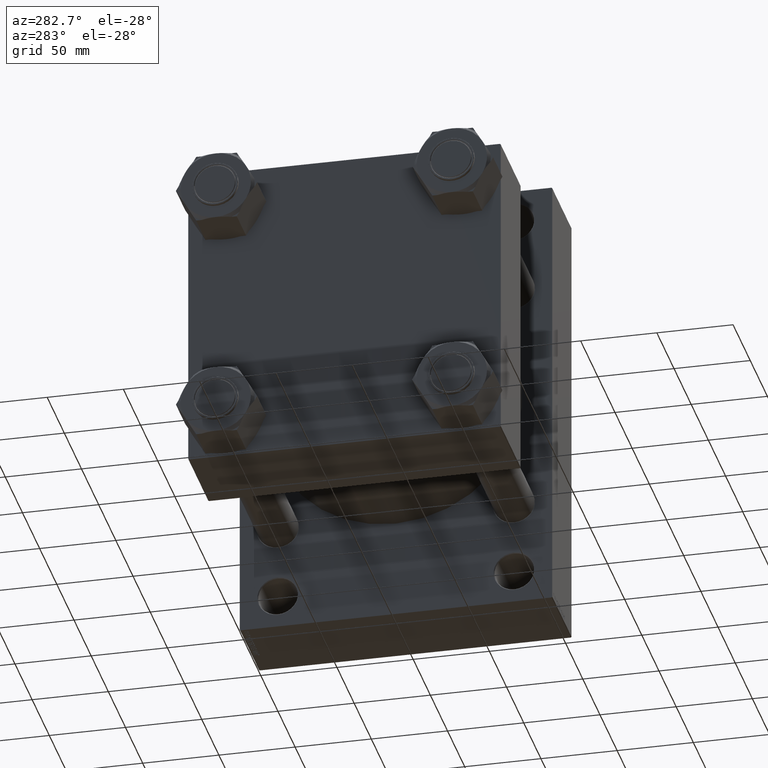
[diagram: clean part render]
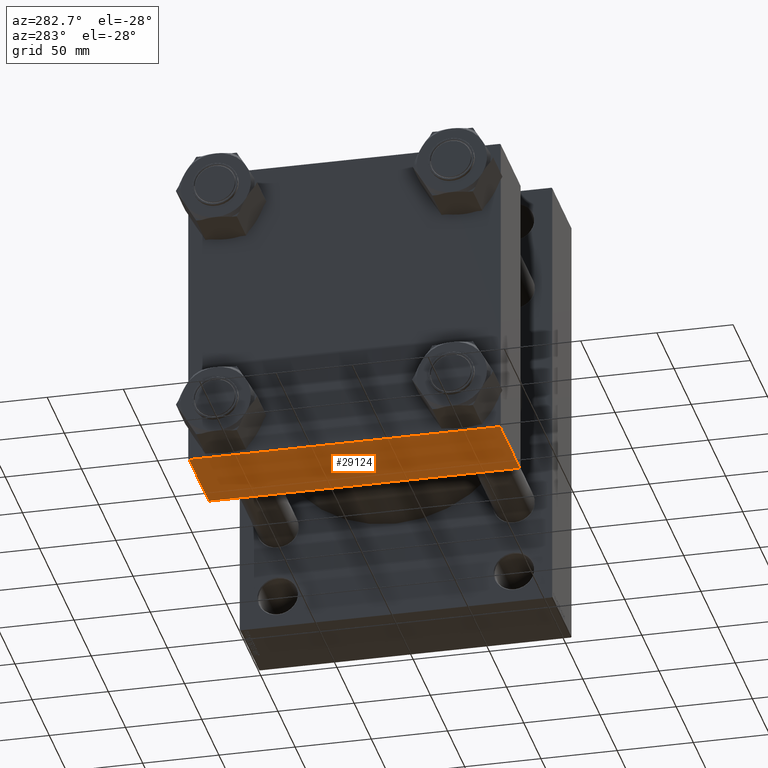
[diagram: same view with one face highlighted and labeled with its STEP entity id]
A machine part, auxiliary view. The second image highlights one B-rep face of the part: STEP entity #29124.
In plain terms, the highlighted planar face has unit normal (0, 0, -1).
Its self-contained STEP definition (entity closure, byte-faithful):
#1631 = VERTEX_POINT ( 'NONE', #3513 ) ;
#2233 = EDGE_LOOP ( 'NONE', ( #3980, #20456, #4091, #33332 ) ) ;
#2927 = VERTEX_POINT ( 'NONE', #12101 ) ;
#3513 = CARTESIAN_POINT ( 'NONE',  ( 0.000000000000000000, 102.0000000000000142, -102.4999999999999716 ) ) ;
#3545 = CARTESIAN_POINT ( 'NONE',  ( 58.00000000000000000, 102.0000000000000142, -102.4999999999999716 ) ) ;
#3816 = VERTEX_POINT ( 'NONE', #19668 ) ;
#3980 = ORIENTED_EDGE ( 'NONE', *, *, #38044, .F. ) ;
#4091 = ORIENTED_EDGE ( 'NONE', *, *, #7343, .T. ) ;
#7343 = EDGE_CURVE ( 'NONE', #45746, #2927, #25594, .T. ) ;
#10395 = CARTESIAN_POINT ( 'NONE',  ( 58.00000000000000000, 102.5000000000000284, -102.4999999999999716 ) ) ;
#12101 = CARTESIAN_POINT ( 'NONE',  ( 58.00000000000000000, -101.9999999999999432, -102.5000000000000000 ) ) ;
#14666 = DIRECTION ( 'NONE',  ( 0.000000000000000000, 1.353930517835556973E-16, -1.000000000000000000 ) ) ;
#18305 = FACE_OUTER_BOUND ( 'NONE', #2233, .T. ) ;
#18595 = EDGE_CURVE ( 'NONE', #1631, #45746, #43815, .T. ) ;
#19368 = EDGE_CURVE ( 'NONE', #2927, #3816, #47468, .T. ) ;
#19668 = CARTESIAN_POINT ( 'NONE',  ( 0.000000000000000000, -101.9999999999999432, -102.5000000000000000 ) ) ;
#20456 = ORIENTED_EDGE ( 'NONE', *, *, #18595, .T. ) ;
#21259 = DIRECTION ( 'NONE',  ( 0.000000000000000000, -1.000000000000000000, -1.353930517835556727E-16 ) ) ;
#21620 = VECTOR ( 'NONE', #21259, 1000.000000000000000 ) ;
#21677 = PLANE ( 'NONE',  #43006 ) ;
#25594 = LINE ( 'NONE', #10395, #29786 ) ;
#26011 = DIRECTION ( 'NONE',  ( 0.000000000000000000, 1.000000000000000000, 1.353930517835556973E-16 ) ) ;
#26623 = VECTOR ( 'NONE', #40674, 1000.000000000000000 ) ;
#29124 = ADVANCED_FACE ( 'NONE', ( #18305 ), #21677, .T. ) ;
#29786 = VECTOR ( 'NONE', #39573, 1000.000000000000000 ) ;
#33011 = CARTESIAN_POINT ( 'NONE',  ( 58.00000000000000000, 102.5000000000000284, -102.4999999999999716 ) ) ;
#33332 = ORIENTED_EDGE ( 'NONE', *, *, #19368, .T. ) ;
#33958 = DIRECTION ( 'NONE',  ( -1.000000000000000000, 0.000000000000000000, 0.000000000000000000 ) ) ;
#36616 = CARTESIAN_POINT ( 'NONE',  ( 0.000000000000000000, -101.9999999999999432, -102.5000000000000000 ) ) ;
#38044 = EDGE_CURVE ( 'NONE', #1631, #3816, #46120, .T. ) ;
#39573 = DIRECTION ( 'NONE',  ( 0.000000000000000000, -1.000000000000000000, -1.353930517835556727E-16 ) ) ;
#39582 = CARTESIAN_POINT ( 'NONE',  ( 58.00000000000000000, 102.0000000000000142, -102.4999999999999716 ) ) ;
#40674 = DIRECTION ( 'NONE',  ( 1.000000000000000000, 0.000000000000000000, 0.000000000000000000 ) ) ;
#43006 = AXIS2_PLACEMENT_3D ( 'NONE', #33011, #14666, #26011 ) ;
#43815 = LINE ( 'NONE', #3545, #26623 ) ;
#44374 = VECTOR ( 'NONE', #33958, 1000.000000000000000 ) ;
#45746 = VERTEX_POINT ( 'NONE', #39582 ) ;
#45878 = CARTESIAN_POINT ( 'NONE',  ( 0.000000000000000000, 102.5000000000000284, -102.4999999999999716 ) ) ;
#46120 = LINE ( 'NONE', #45878, #21620 ) ;
#47468 = LINE ( 'NONE', #36616, #44374 ) ;